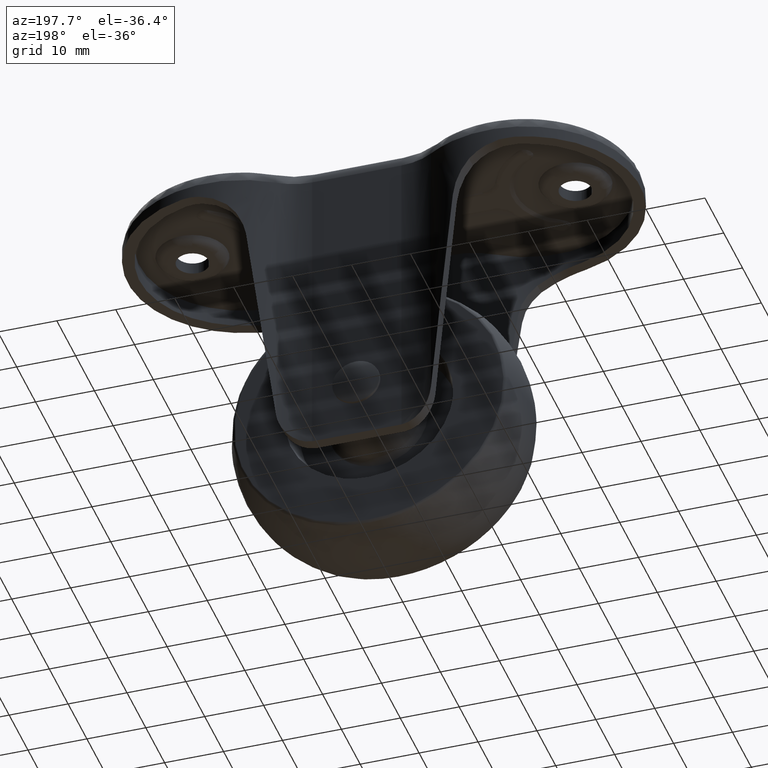
[diagram: clean part render]
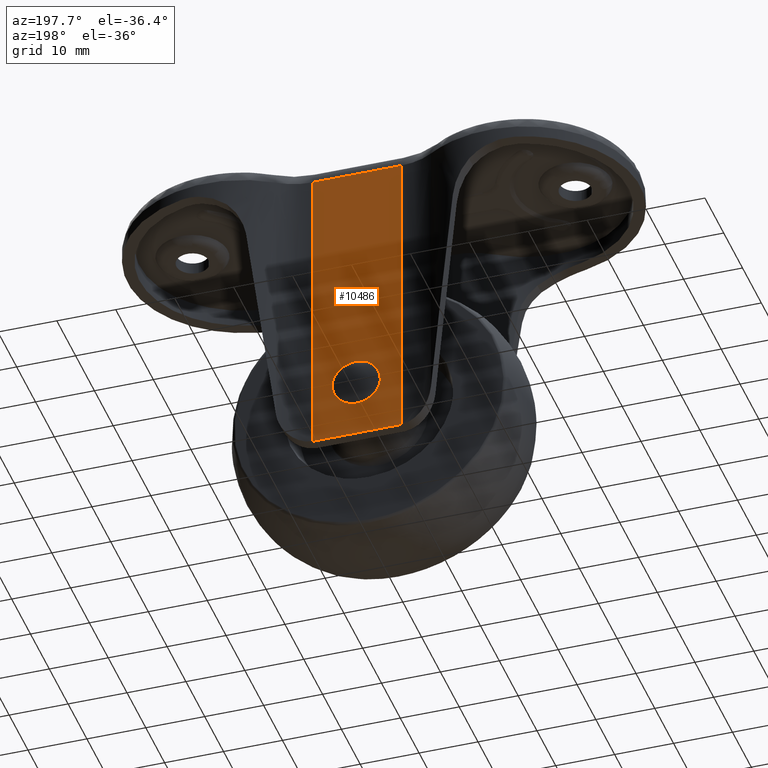
[diagram: same view with one face highlighted and labeled with its STEP entity id]
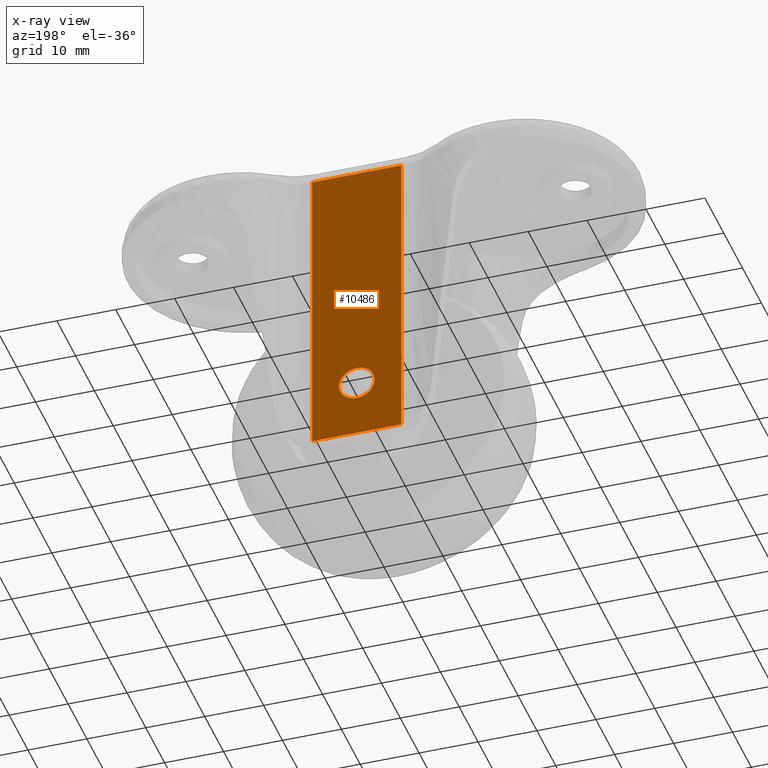
[diagram: x-ray of the same camera — body ghosted, the highlighted face saturated]
A machine part, auxiliary view. The second image highlights one B-rep face of the part: STEP entity #10486.
The next image is the same camera in x-ray: the body ghosted, the highlighted face saturated — about 0% of this face is hidden behind the body in this view.
In plain terms, the highlighted face is a freeform B-spline surface patch.
Its self-contained STEP definition (entity closure, byte-faithful):
#2845=CARTESIAN_POINT('',(-2.994404572714460,14.500000000000000,-44.816857282704767));
#2846=VERTEX_POINT('',#2845);
#2852=CARTESIAN_POINT('',(0.0,14.500000000000000,-41.999999999999993));
#2853=VERTEX_POINT('',#2852);
#2854=CARTESIAN_POINT('',(0.0,14.500000000000000,-41.999999999999993));
#2855=CARTESIAN_POINT('',(-2.822120940207349,14.499999999999995,-42.0));
#2856=CARTESIAN_POINT('',(-2.994404572714460,14.500000000000000,-44.816857282704774));
#2864=(BOUNDED_CURVE()B_SPLINE_CURVE(2,(#2854,#2855,#2856),.UNSPECIFIED.,.F.,.U.)B_SPLINE_CURVE_WITH_KNOTS((3,3),(0.500000000000000,0.739333129424356),.UNSPECIFIED.)CURVE()GEOMETRIC_REPRESENTATION_ITEM()RATIONAL_B_SPLINE_CURVE((1.0,0.719603797416815,0.976072399977145))REPRESENTATION_ITEM(''));
#2865=EDGE_CURVE('',#2853,#2846,#2864,.T.);
#2867=CARTESIAN_POINT('',(2.979028579077197,14.500000000000000,-45.354102704086387));
#2868=VERTEX_POINT('',#2867);
#2869=CARTESIAN_POINT('',(2.979028579077197,14.500000000000005,-45.354102704086387));
#2870=CARTESIAN_POINT('',(3.000000000000000,14.499999999999998,-45.177672359073078));
#2871=CARTESIAN_POINT('',(3.0,14.500000000000000,-45.0));
#2872=CARTESIAN_POINT('',(3.0,14.500000000000000,-41.999999999999993));
#2873=CARTESIAN_POINT('',(0.0,14.500000000000000,-41.999999999999993));
#2881=(BOUNDED_CURVE()B_SPLINE_CURVE(2,(#2869,#2870,#2871,#2872,#2873),.UNSPECIFIED.,.F.,.U.)B_SPLINE_CURVE_WITH_KNOTS((3,2,3),(0.229562473502470,0.250000000000000,0.500000000000000),.UNSPECIFIED.)CURVE()GEOMETRIC_REPRESENTATION_ITEM()RATIONAL_B_SPLINE_CURVE((0.956026754162063,0.976055948318213,1.0,0.707106781186548,1.0))REPRESENTATION_ITEM(''));
#2882=EDGE_CURVE('',#2868,#2853,#2881,.T.);
#2926=CARTESIAN_POINT('',(0.0,14.500000000000000,-48.0));
#2927=VERTEX_POINT('',#2926);
#2928=CARTESIAN_POINT('',(0.0,14.500000000000000,-48.0));
#2929=CARTESIAN_POINT('',(2.664523577644931,14.500000000000004,-48.0));
#2930=CARTESIAN_POINT('',(2.979028579077197,14.500000000000004,-45.354102704086394));
#2938=(BOUNDED_CURVE()B_SPLINE_CURVE(2,(#2928,#2929,#2930),.UNSPECIFIED.,.F.,.U.)B_SPLINE_CURVE_WITH_KNOTS((3,3),(0.0,0.229562473502470),.UNSPECIFIED.)CURVE()GEOMETRIC_REPRESENTATION_ITEM()RATIONAL_B_SPLINE_CURVE((1.0,0.731050832868335,0.956026754162063))REPRESENTATION_ITEM(''));
#2939=EDGE_CURVE('',#2927,#2868,#2938,.T.);
#2941=CARTESIAN_POINT('',(-2.994404572714460,14.500000000000004,-44.816857282704781));
#2942=CARTESIAN_POINT('',(-3.000000000000000,14.499999999999995,-44.908343164826299));
#2943=CARTESIAN_POINT('',(-3.0,14.500000000000000,-45.0));
#2944=CARTESIAN_POINT('',(-3.0,14.500000000000000,-48.000000000000014));
#2945=CARTESIAN_POINT('',(0.0,14.500000000000000,-48.0));
#2953=(BOUNDED_CURVE()B_SPLINE_CURVE(2,(#2941,#2942,#2943,#2944,#2945),.UNSPECIFIED.,.F.,.U.)B_SPLINE_CURVE_WITH_KNOTS((3,2,3),(0.739333129424356,0.750000000000000,1.0),.UNSPECIFIED.)CURVE()GEOMETRIC_REPRESENTATION_ITEM()RATIONAL_B_SPLINE_CURVE((0.976072399977145,0.987502983769733,1.0,0.707106781186548,1.0))REPRESENTATION_ITEM(''));
#2954=EDGE_CURVE('',#2846,#2927,#2953,.T.);
#5875=CARTESIAN_POINT('',(7.568322999999910,14.500000000000000,-3.0));
#5876=VERTEX_POINT('',#5875);
#5935=CARTESIAN_POINT('',(-7.568323000000000,14.500000000000000,-3.0));
#5936=VERTEX_POINT('',#5935);
#5958=CARTESIAN_POINT('',(-7.568323000000000,14.500000000000000,-3.0));
#5959=CARTESIAN_POINT('',(7.568322999999910,14.500000000000000,-3.0));
#5960=QUASI_UNIFORM_CURVE('',1,(#5958,#5959),.UNSPECIFIED.,.F.,.U.);
#5961=EDGE_CURVE('',#5936,#5876,#5960,.T.);
#8831=CARTESIAN_POINT('',(7.191647999999790,14.500000000000000,-55.0));
#8832=VERTEX_POINT('',#8831);
#8838=CARTESIAN_POINT('',(7.568322999999910,14.500000000000000,-54.988164655750097));
#8839=VERTEX_POINT('',#8838);
#8840=CARTESIAN_POINT('',(7.191647999999790,14.500000000000000,-55.0));
#8841=CARTESIAN_POINT('',(7.380171436647507,14.499999999999996,-54.999999999999993));
#8842=CARTESIAN_POINT('',(7.568322999999911,14.500000000000000,-54.988164655750118));
#8850=(BOUNDED_CURVE()B_SPLINE_CURVE(2,(#8840,#8841,#8842),.UNSPECIFIED.,.F.,.U.)CURVE()GEOMETRIC_REPRESENTATION_ITEM()QUASI_UNIFORM_CURVE()RATIONAL_B_SPLINE_CURVE((1.0,0.999506739003049,1.0))REPRESENTATION_ITEM(''));
#8851=EDGE_CURVE('',#8832,#8839,#8850,.T.);
#9417=CARTESIAN_POINT('',(-7.568323000000000,14.500000000000000,-54.988164655750097));
#9418=VERTEX_POINT('',#9417);
#9454=CARTESIAN_POINT('',(-7.191648000000000,14.500000000000000,-55.0));
#9455=VERTEX_POINT('',#9454);
#9456=CARTESIAN_POINT('',(-7.568323000000003,14.500000000000000,-54.988164655750133));
#9457=CARTESIAN_POINT('',(-7.380171436647663,14.500000000000002,-54.999999999999993));
#9458=CARTESIAN_POINT('',(-7.191648000000000,14.500000000000000,-55.0));
#9466=(BOUNDED_CURVE()B_SPLINE_CURVE(2,(#9456,#9457,#9458),.UNSPECIFIED.,.F.,.U.)CURVE()GEOMETRIC_REPRESENTATION_ITEM()QUASI_UNIFORM_CURVE()RATIONAL_B_SPLINE_CURVE((1.0,0.999506739003050,1.0))REPRESENTATION_ITEM(''));
#9467=EDGE_CURVE('',#9418,#9455,#9466,.T.);
#10455=CARTESIAN_POINT('',(-8.324398580454243,14.500000000000000,-0.402600100786090));
#10456=CARTESIAN_POINT('',(-8.324398580454245,14.500000000000000,-57.597401293962598));
#10457=CARTESIAN_POINT('',(8.324398851118477,14.500000000000000,-0.402600100786090));
#10458=CARTESIAN_POINT('',(8.324398851118477,14.500000000000000,-57.597401293962612));
#10459=B_SPLINE_SURFACE_WITH_KNOTS('',1,1,((#10455,#10457),(#10456,#10458)),.UNSPECIFIED.,.F.,.F.,.U.,(2,2),(2,2),(0.0,57.194801193176517),(0.0,16.648797431572721),.UNSPECIFIED.);
#10460=CARTESIAN_POINT('',(-7.568323000000000,14.500000000000000,-3.0));
#10461=CARTESIAN_POINT('',(-7.568323000000000,14.500000000000000,-54.988164655750097));
#10462=QUASI_UNIFORM_CURVE('',1,(#10460,#10461),.UNSPECIFIED.,.F.,.U.);
#10463=EDGE_CURVE('',#5936,#9418,#10462,.T.);
#10464=ORIENTED_EDGE('',*,*,#10463,.F.);
#10465=ORIENTED_EDGE('',*,*,#5961,.T.);
#10466=CARTESIAN_POINT('',(7.568322999999910,14.500000000000000,-3.0));
#10467=CARTESIAN_POINT('',(7.568322999999910,14.500000000000000,-54.988164655750097));
#10468=QUASI_UNIFORM_CURVE('',1,(#10466,#10467),.UNSPECIFIED.,.F.,.U.);
#10469=EDGE_CURVE('',#5876,#8839,#10468,.T.);
#10470=ORIENTED_EDGE('',*,*,#10469,.T.);
#10471=ORIENTED_EDGE('',*,*,#8851,.F.);
#10472=CARTESIAN_POINT('',(7.191647999999790,14.500000000000000,-55.0));
#10473=CARTESIAN_POINT('',(-7.191648000000000,14.500000000000000,-55.0));
#10474=QUASI_UNIFORM_CURVE('',1,(#10472,#10473),.UNSPECIFIED.,.F.,.U.);
#10475=EDGE_CURVE('',#8832,#9455,#10474,.T.);
#10476=ORIENTED_EDGE('',*,*,#10475,.T.);
#10477=ORIENTED_EDGE('',*,*,#9467,.F.);
#10478=EDGE_LOOP('',(#10464,#10465,#10470,#10471,#10476,#10477));
#10479=FACE_OUTER_BOUND('',#10478,.T.);
#10480=ORIENTED_EDGE('',*,*,#2865,.T.);
#10481=ORIENTED_EDGE('',*,*,#2954,.T.);
#10482=ORIENTED_EDGE('',*,*,#2939,.T.);
#10483=ORIENTED_EDGE('',*,*,#2882,.T.);
#10484=EDGE_LOOP('',(#10480,#10481,#10482,#10483));
#10485=FACE_BOUND('',#10484,.T.);
#10486=ADVANCED_FACE('',(#10479,#10485),#10459,.F.);